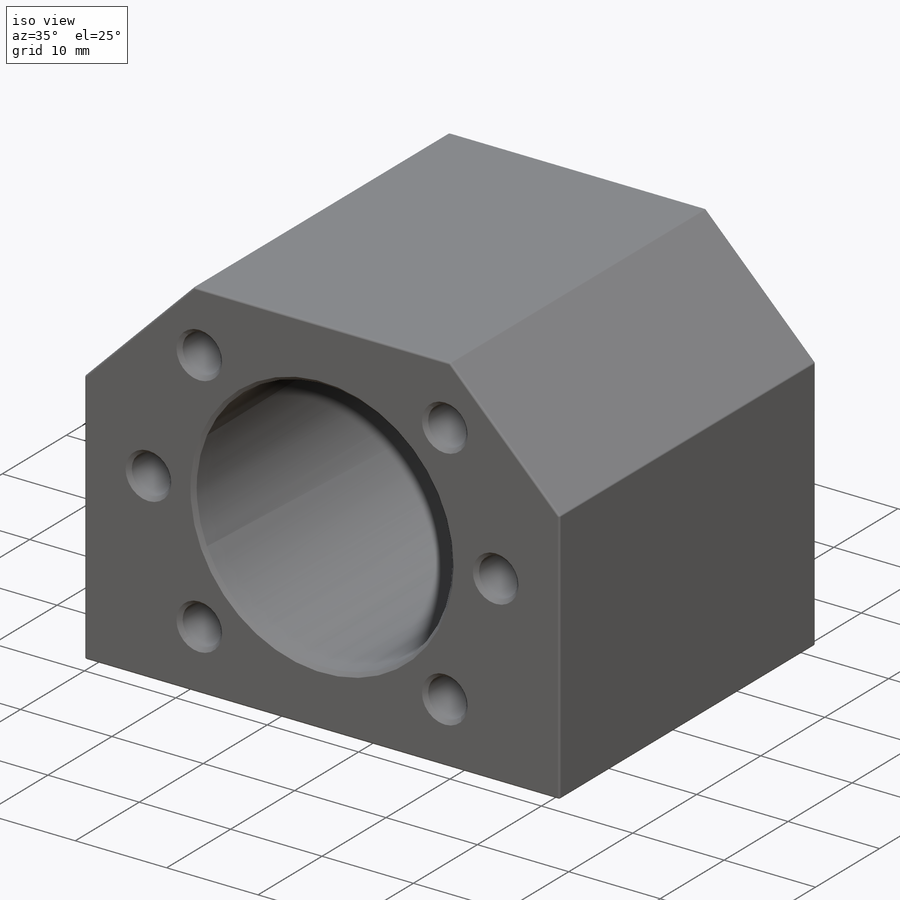
[diagram: iso view]
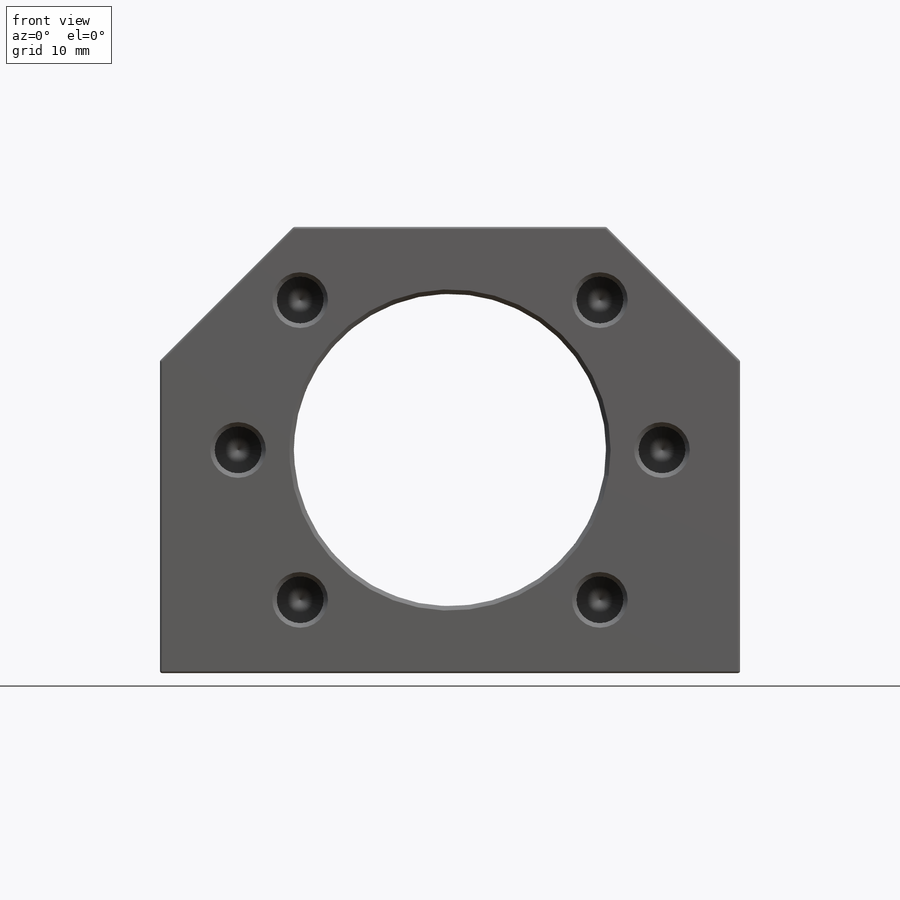
[diagram: front view]
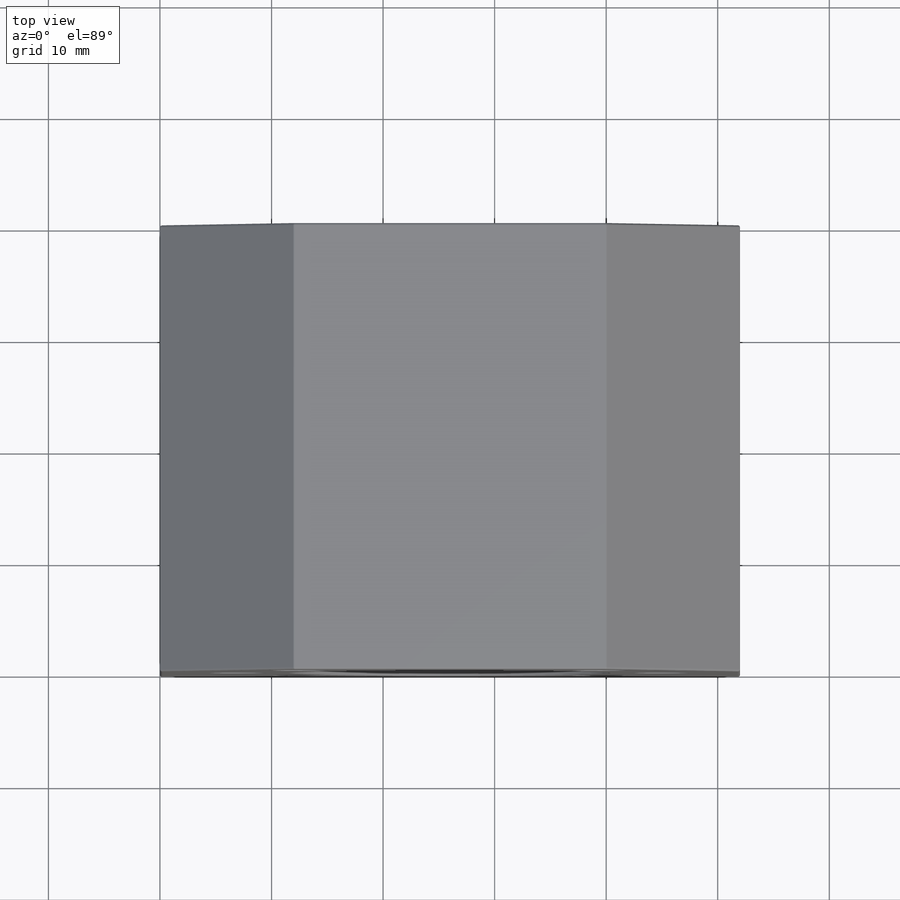
[diagram: top view]
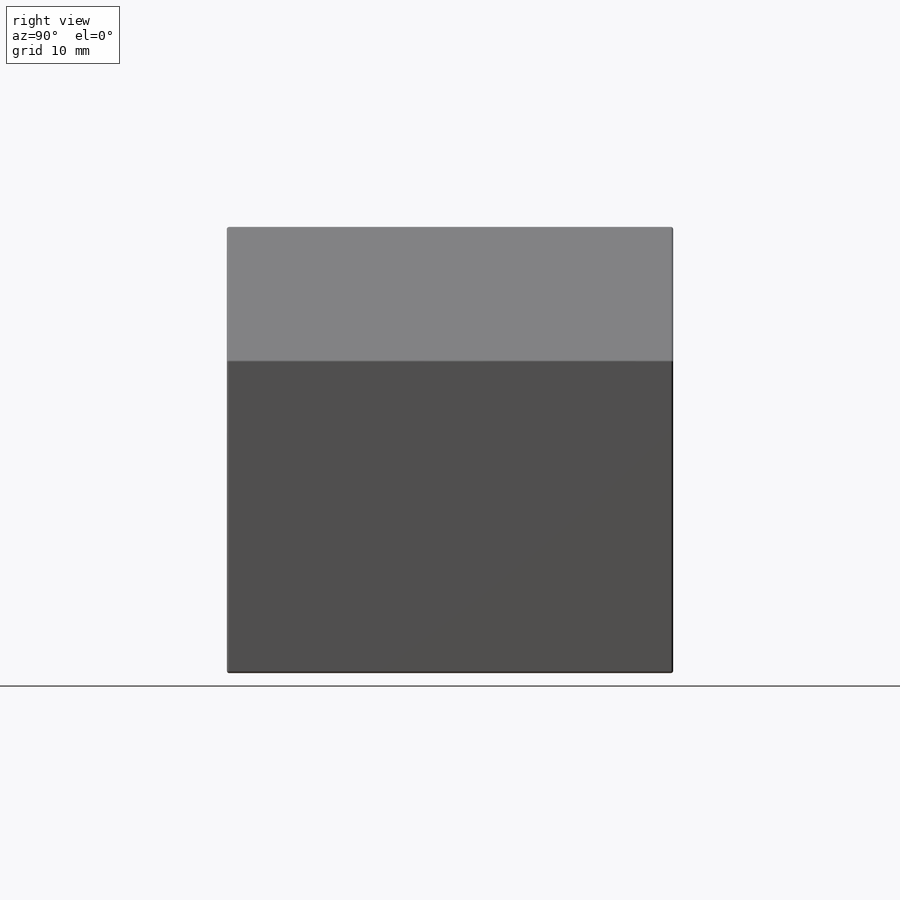
[diagram: right view]
SOLIDWORKS PART (.sldprt)
format: sldprt  version: not decoded by parser v0  size: 366,592 bytes
history: native  units: mm
features: thread x6, sketch x5, plane x3, chamfer x2, hole x2, pattern_circular x2, material x1, extrude x1, fillet x1 (+9 scaffold rows collapsed)
feature tree (32):
  scaffold x9  (default folders/planes/origin — collapsed)
  material  "Matériau <non spécifié>"
  plane  "Plan de face"
  plane  "Plan de dessus"
  plane  "Plan de droite"
  sketch  "Esquisse1"  dims[D1=40.0mm]
  extrude  "Boss.-Extru.1"  Depth=40mm
  chamfer  "Chanfrein1"  Distance=12mm Angle=45deg
  hole  "Trou taraudé M51"  [1 undecoded]
  sketch  "Esquisse3"  dims[D1=20.0mm D2=20.0mm D3=38.0mm D4=7.0mm]
  thread  "Filetage de perçage1"  Diameter=10mm  [1 undecoded]
  thread  "Filetage de perçage2"  Diameter=10mm  [1 undecoded]
  sketch  "Esquisse2"  dims[hole-wizard template sketch: 50 standard entries collapsed; hole parameters above]
  pattern_circular  "Répétition circulaire1"  Count=2 Angle=45deg
  pattern_circular  "Répétition circulaire2"  Count=2 Angle=315deg
  hole  "Trou taraudé M52"  Diameter=4.2mm Depth=14mm
  sketch  "Esquisse5"  dims[D1=8.0mm D2=24.0mm D3=40.0mm D4=6.0mm D5=6.0mm D6=24.0mm D7=40.0mm D8=8.0mm]
  sketch  "Esquisse4"  dims[hole-wizard template sketch: 50 standard entries collapsed; hole parameters above]
  thread  "Filetage de perçage3"  Diameter=10mm  [1 undecoded]
  thread  "Filetage de perçage4"  Diameter=10mm  [1 undecoded]
  thread  "Filetage de perçage5"  Diameter=10mm  [1 undecoded]
  thread  "Filetage de perçage6"  Diameter=10mm  [1 undecoded]
  fillet  "Congé1"  Radius=0.2mm
  chamfer  "Chanfrein2"  Distance=0.4mm Angle=45deg
decode coverage: 18 of 19 modeling features carry decoded parameters
note: ~ marks probable driven/reference dimensions
note: 7 parameter values undecoded
note: suppression state not decoded; provenance and decode notes live in map.json
